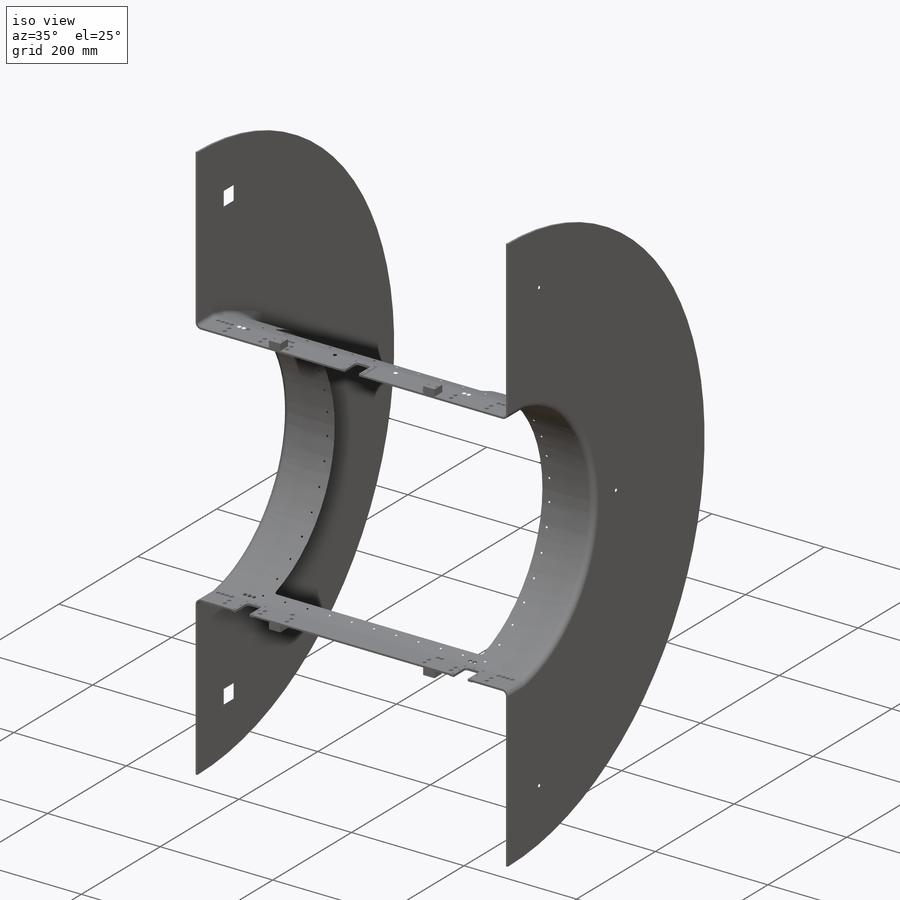
[diagram: iso view]
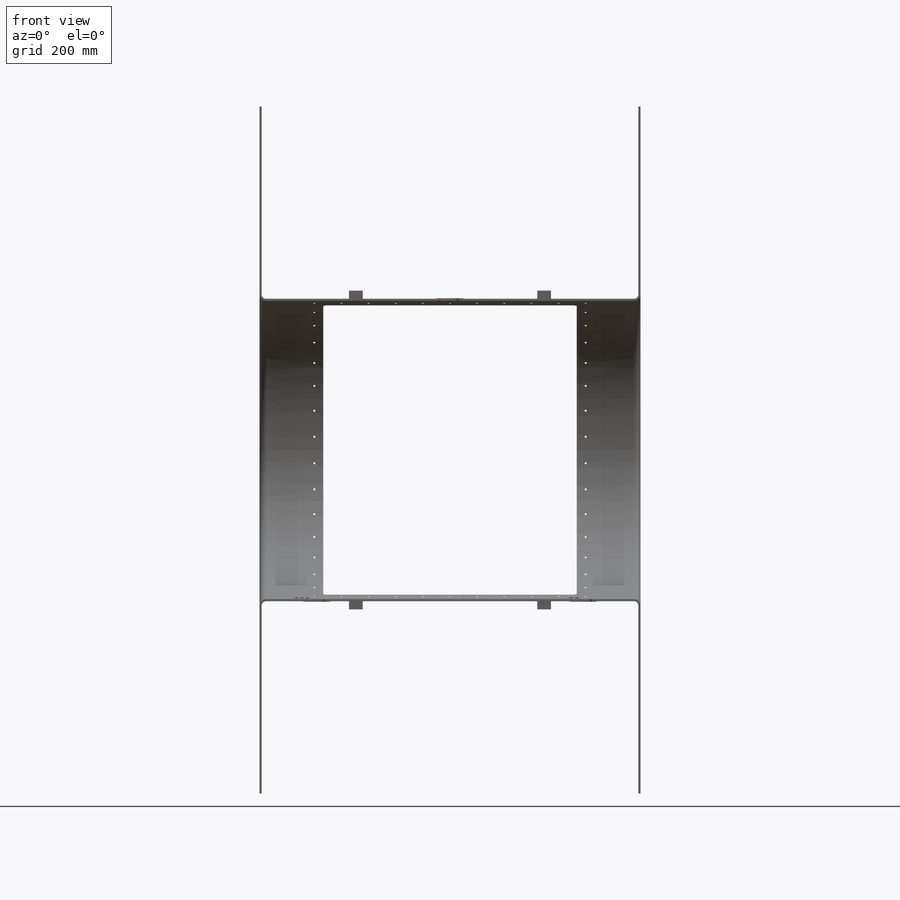
[diagram: front view]
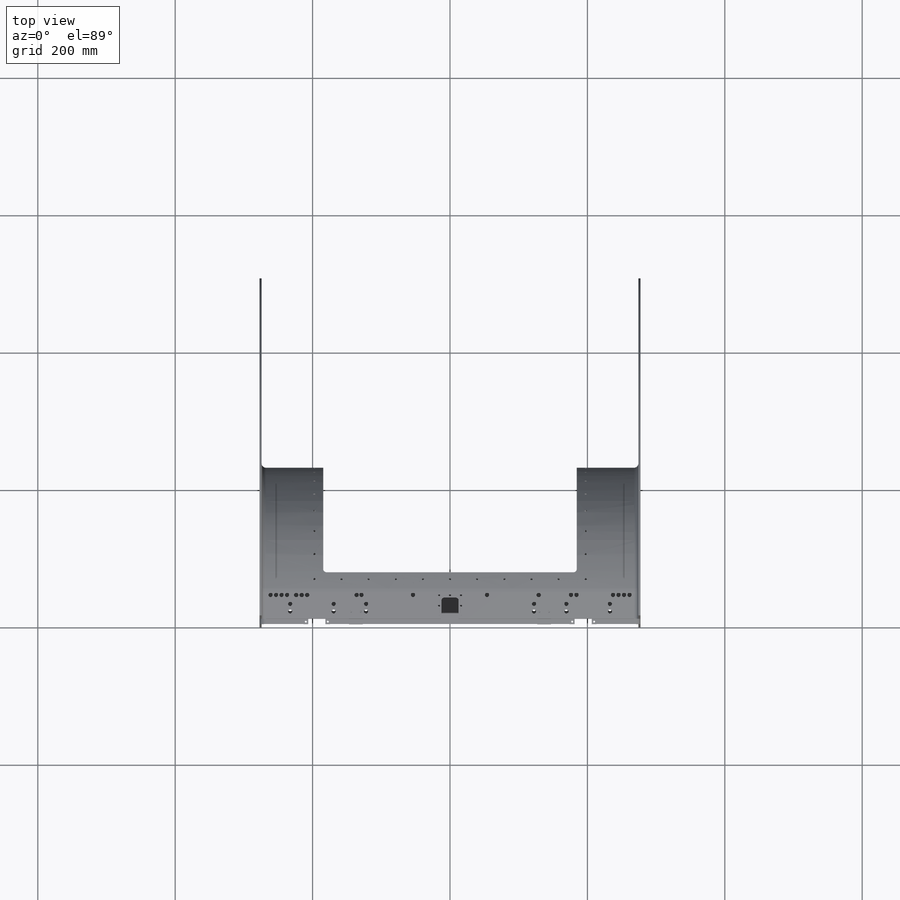
[diagram: top view]
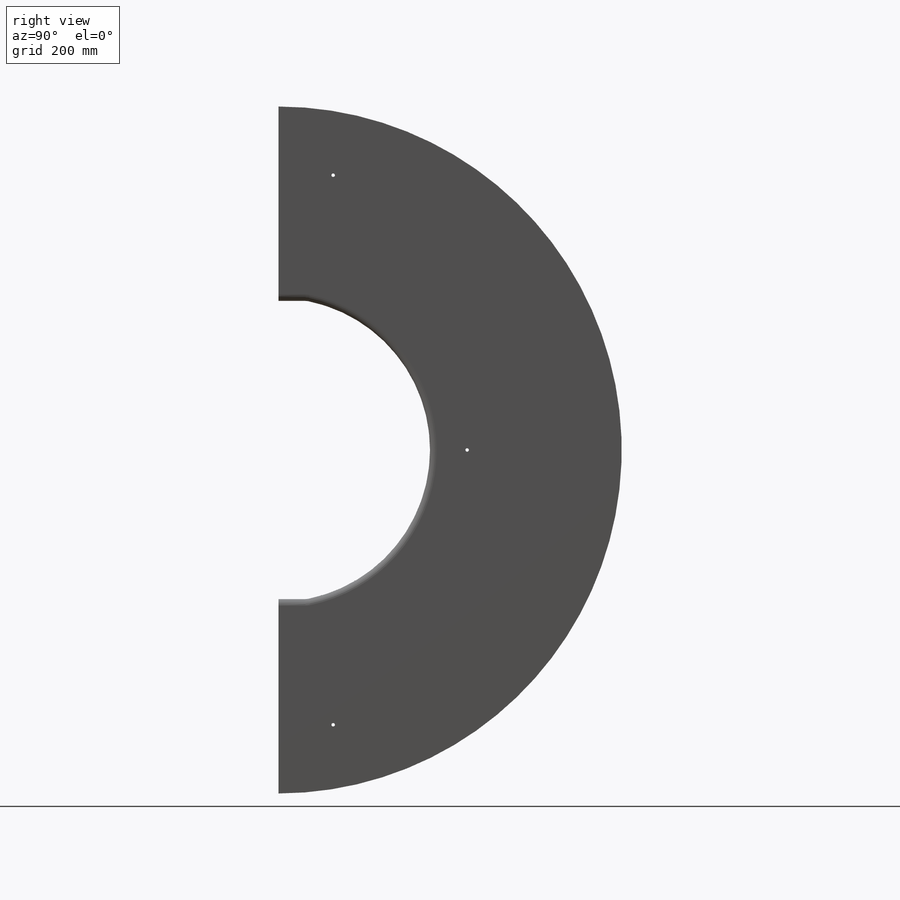
[diagram: right view]
SOLIDWORKS PART (.sldprt)
format: sldprt  version: not decoded by parser v0  size: 1,250,304 bytes
history: native  units: mm
features: sketch x25, cut_extrude x14, plane x7, mirror x6, extrude x5, thread x4, fillet x3, pattern_linear x3, material x1, hole x1, cut_revolve x1, pattern_circular x1 + 2 further entries (+13 scaffold rows collapsed)
feature tree (86):
  scaffold x13  (default folders/planes/origin — collapsed)
  material  "Material <not specified>"
  plane  "Plane1"
  plane  "Plane2"
  plane  "Plane3"
  "Axis2"
  "Axis3"
  sketch  "Sketch1"  dims[c1.D1=20.0mm c1.D4=221.0mm c1.D2=0.5mm c1.D3=~73.980329mm c2.D2=0.5mm c2.D3=217.0mm c2.D1=554.7415mm c2.D5=3.175mm c2.D6=1.0mm c2.D7=5.0mm]
  sketch  "Sketch2"  dims[D1=500.0mm]
  extrude  "Extrude1"  Depth=3.175mm
  mirror  "Mirror1"
  plane  "Plane4"  Offset=232mm
  sketch  "Sketch3"  dims[D1=~137.097875mm D2=20.0mm]
  extrude  "Extrude2"  [1 undecoded]
  hole  "M3x0.5 Tapped Hole1"  Diameter=3mm Depth=7.5mm
  sketch  "Sketch5"  dims[D1=14.0mm]
  sketch  "Sketch4"  dims[hole-wizard template sketch: 50 standard entries collapsed; hole parameters above]
  thread  "Hole Thread1"  Diameter=6mm  [1 undecoded]
  thread  "Hole Thread2"  Diameter=6mm  [1 undecoded]
  thread  "Hole Thread3"  Diameter=6mm  [1 undecoded]
  thread  "Hole Thread4"  Diameter=6mm  [1 undecoded]
  mirror  "Mirror2"
  fillet  "Fillet1"  Radius=6.35mm
  fillet  "Fillet2"  Radius=9.525mm
  sketch  "Sketch6"  dims[D3=4.0mm D1=25.0mm D2=31.0mm]
  cut_extrude  "Extrude3"  [1 undecoded]
  sketch  "Sketch10"  dims[D1=39.0mm D2=38.0mm]
  extrude  "Extrude7"  Depth=0.79375mm
  sketch  "Sketch7"  dims[D4=4.0mm D1=25.0mm D2=31.0mm D3=193.855mm]
  cut_extrude  "Extrude4"  [1 undecoded]
  sketch  "Sketch11"  dims[D1=39.0mm D2=38.0mm]
  extrude  "Extrude8"  Depth=0.79375mm
  sketch  "Sketch8"  dims[D1=2.8448mm D2=16.0mm D3=4.0mm D4=3.5mm]
  cut_extrude  "Extrude5"  [1 undecoded]
  sketch  "Sketch9"  dims[c1.D1=2.8448mm c1.D2=2.8448mm c1.D3=2.8448mm c1.D4=~1.857844mm c2.D2=3.5mm c2.D3=16.0mm c3.D2=4.0mm c3.D4=16.0mm c3.D5=4.0mm]
  cut_extrude  "Extrude6"  [1 undecoded]
  pattern_linear  "LPattern1"  Count1=3 Count2=3 Spacing1=16mm Spacing2=15.25mm
  sketch  "Sketch15"  dims[D3=6.25mm D1=~237.252238mm D2=35.0mm]
  cut_extrude  "Extrude10"  [1 undecoded]
  pattern_linear  "LPattern3"  Count1=4 Count2=1 Spacing1=8mm Spacing2=1mm
  mirror  "Mirror5"
  sketch  "Sketch16"  dims[D6=6.0mm D1=~122.237632mm D2=169.355mm D3=~232.687756mm D4=11.0mm D5=22.0mm]
  cut_extrude  "Extrude11"  [1 undecoded]
  plane  "Plane5"
  sketch  "Sketch17"  dims[c1.D1=6.25mm c1.D4=6.25mm c1.D3=6.25mm c1.D5=6.25mm c1.D6=6.25mm c1.D7=6.25mm c1.D2=176.0mm c2.D3=35.0mm c2.D4=208.0mm c3.D3=8.0mm c3.D5=8.0mm c3.D6=8.0mm c3.D7=8.0mm]
  cut_extrude  "Extrude12"  [1 undecoded]
  sketch  "Sketch18"  dims[c1.D2=~14.746445mm c1.D3=~14.746445mm c1.D4=~14.746445mm c1.D5=6.25mm c1.D1=35.0mm c2.D2=7.0mm c2.D3=7.0mm c2.D4=129.0mm]
  cut_extrude  "Extrude13"  [1 undecoded]
  sketch  "Sketch19"
  cut_extrude  "Extrude15"  [1 undecoded]
  sketch  "Sketch20"  dims[c1.D3=6.25mm c1.D4=6.25mm c1.D5=6.25mm c1.D6=6.25mm c1.D1=176.0mm c1.D2=208.0mm c2.D3=8.0mm c2.D4=8.0mm c2.D5=8.0mm c2.D6=8.0mm]
  cut_extrude  "Extrude16"  [1 undecoded]
  sketch  "Sketch21"  dims[c1.D1=~87.902251mm c2.D1=30.0deg c2.D2=4.5085mm c2.D3=6.4685mm c2.D4=35.0mm]
  cut_extrude  "Extrude17"  [1 undecoded]
  sketch  "Sketch22"
  sketch  "Sketch23"
  sketch  "Sketch24"  dims[c1.D1=~253.850647mm c2.D1=20.0deg c2.D2=22.5mm c2.D3=110.0mm c3.D2=22.5mm c3.D4=227.35mm c3.D5=60.0mm]
  cut_revolve  "Cut-Revolve1"  Angle=144.5deg
  plane  "Plane6"
  plane  "Plane7"  Offset=197.5mm
  sketch  "Sketch25"  dims[c1.D1=~14.633182mm c1.D2=3.0mm c2.D1=~196.103697mm]
  cut_extrude  "Extrude18"  [1 undecoded]
  mirror  "Mirror6"
  pattern_circular  "CirPattern1"  Count=16 Angle=10deg
  sketch  "Sketch26"  dims[c1.D1=~14.633182mm c1.D2=3.0mm c2.D1=39.5mm]
  cut_extrude  "Extrude19"  [1 undecoded]
  mirror  "Mirror7"
  pattern_linear  "LPattern4"  Count1=9 Count2=1 Spacing1=39.5mm Spacing2=1mm
  fillet  "Fillet3"  Radius=5mm
  sketch  "Sketch28"  dims[c1.D1=400.0mm c1.D2=25.0mm c1.D3=80.0mm c1.D4=275.0mm c2.D1=80.0mm c2.D3=400.0mm c2.D4=275.0mm]
  extrude  "Extrude20"  Depth=8.2mm
  mirror  "Mirror8"
  sketch  "Sketch30"  dims[D1=5.0mm]
  cut_extrude  "Extrude21"  [1 undecoded]
decode coverage: 39 of 63 modeling features carry decoded parameters; 2 rows unclassified (native names shown)
note: ~ marks probable driven/reference dimensions
note: 19 parameter values undecoded
summary: no parameter record found for 15 features
note: suppression state not decoded; provenance and decode notes live in map.json
